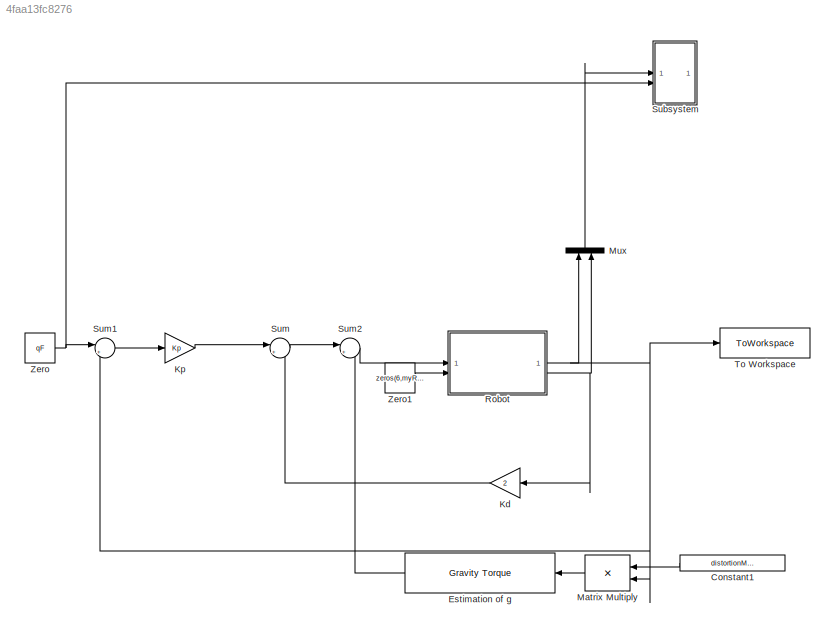
MODEL slx_4faa13fc8276
KIND model
CONFIG AbsTol = auto
CONFIG EnableMultiTasking = off
CONFIG FixedStep = sampleTime
CONFIG MaxStep = 0.01
CONFIG MinStep = auto
CONFIG RelTol = 1e-3
CONFIG SampleTimeConstraint = Unconstrained
CONFIG SolverName = FixedStepAuto
CONFIG StartTime = 0.0
CONFIG StopTime = 15
BLOCK [Constant] Constant1
  NameLocation = top
  Value = distortionMatrix
BLOCK [Reference] Estimation of g  REF=robotmaniplib/Gravity Torque
  NameLocation = top
  SourceBlock = robotmaniplib/Gravity Torque
  SourceType = Gravity Torque
BLOCK [Gain] Kd
  Gain = 2
  NameLocation = top
BLOCK [Gain] Kp
  Gain = Kp
  Multiplication = Matrix(K*u)
BLOCK [Product] Matrix Multiply
  Multiplication = Matrix(*)
  NameLocation = top
BLOCK [Mux] Mux
  DisplayOption = bar
  Inputs = 2
  NameLocation = right
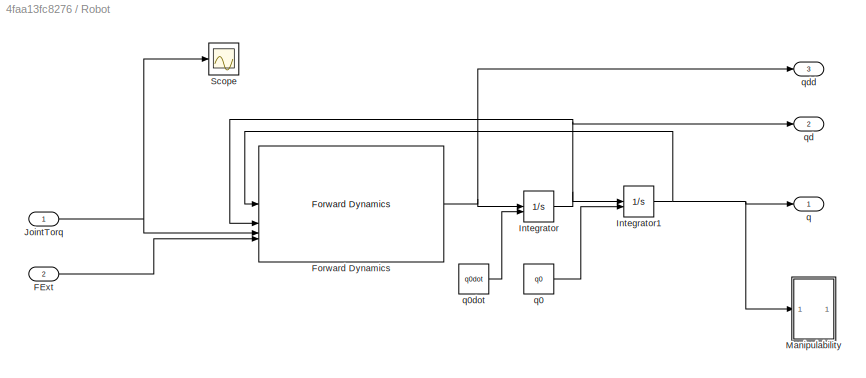
BLOCK [SubSystem] Robot
BLOCK [Inport] Robot/FExt
  Port = 2
BLOCK [Reference] Robot/Forward Dynamics  REF=robotmaniplib/Forward Dynamics
  SourceBlock = robotmaniplib/Forward Dynamics
  SourceType = Forward Dynamics
BLOCK [Integrator] Robot/Integrator
  InitialConditionSource = external
BLOCK [Integrator] Robot/Integrator1
  InitialConditionSource = external
BLOCK [Inport] Robot/JointTorq
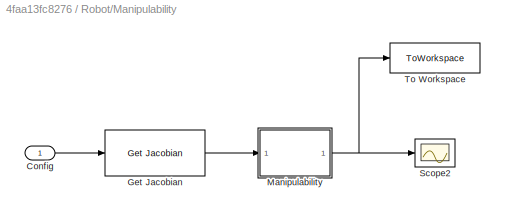
BLOCK [SubSystem] Robot/Manipulability
BLOCK [Inport] Robot/Manipulability/Config
BLOCK [Reference] Robot/Manipulability/Get Jacobian  REF=robotmaniplib/Get Jacobian
  SourceBlock = robotmaniplib/Get Jacobian
  SourceType = Get Jacobian
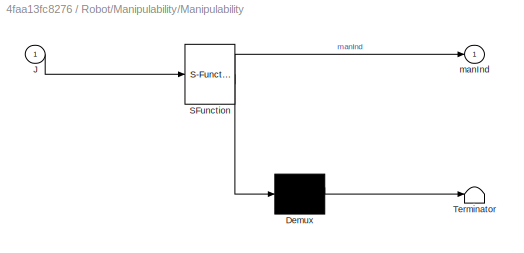
BLOCK [SubSystem] Robot/Manipulability/Manipulability
  ErrorFcn = Stateflow.Translate.translate
  PermitHierarchicalResolution = ExplicitOnly
  SFBlockType = MATLAB Function
  TreatAsAtomicUnit = on
BLOCK [Demux] Robot/Manipulability/Manipulability/ Demux 
  Outputs = 1
BLOCK [S-Function] Robot/Manipulability/Manipulability/ SFunction 
  EnableBusSupport = on
  FunctionName = sf_sfun
  PortCounts = [1 2]
  SFcnIsStateOwnerBlock = off
  SFunctionDeploymentMode = off
  Tag = Stateflow S-Function 1
BLOCK [Terminator] Robot/Manipulability/Manipulability/ Terminator 
BLOCK [Inport] Robot/Manipulability/Manipulability/J
BLOCK [Outport] Robot/Manipulability/Manipulability/manInd
BLOCK [Scope] Robot/Manipulability/Scope2
  Floating = off
  NumInputPorts = 1
  ScopeSpecificationString = Simulink.scopes.TimeScopeBlockCfg('CurrentConfiguration', extmgr.ConfigurationSet(extmgr.Configuration('Core','General UI',true),extmgr.Configuration('Core','Source UI',true),extmgr.Configuration('Sources','WiredSimulink',true,'DataLoggingVariableName','ScopeData8'),extmgr.Configuration('Visuals','Time Domain',true,'SerializedDisplays',{struct('MinYLimReal','-0.01246','MaxYLimReal','0.11213','YLab...<+1401ch>
BLOCK [ToWorkspace] Robot/Manipulability/To Workspace
  FixptAsFi = on
  MaxDataPoints = inf
  SampleTime = -1
  SaveFormat = Timeseries
  VariableName = manip
BLOCK [Scope] Robot/Scope
  Floating = off
  NumInputPorts = 1
  ScopeSpecificationString = Simulink.scopes.TimeScopeBlockCfg('CurrentConfiguration', extmgr.ConfigurationSet(extmgr.Configuration('Core','General UI',true),extmgr.Configuration('Core','Source UI',true),extmgr.Configuration('Sources','WiredSimulink',true,'DataLoggingVariableName','ScopeData2'),extmgr.Configuration('Visuals','Time Domain',true,'SerializedDisplays',{struct('MinYLimReal','-23.49116','MaxYLimReal','67.7226','YLa...<+1442ch>
BLOCK [Outport] Robot/q
BLOCK [Constant] Robot/q0
  Value = q0
BLOCK [Constant] Robot/q0dot
  Value = q0dot
BLOCK [Outport] Robot/qd
  Port = 2
BLOCK [Outport] Robot/qdd
  Port = 3
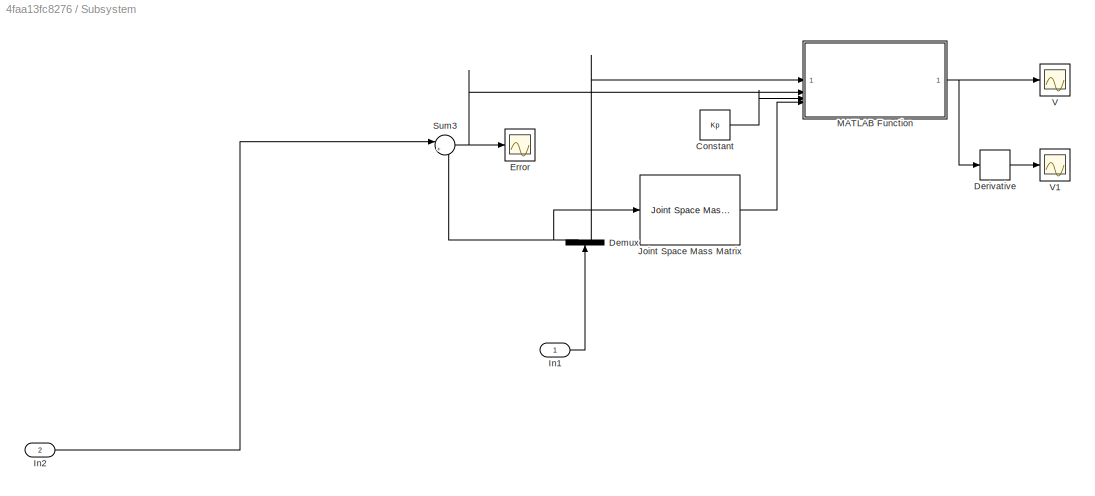
BLOCK [SubSystem] Subsystem
BLOCK [Constant] Subsystem/Constant
  Value = Kp
BLOCK [Demux] Subsystem/Demux
  NameLocation = right
  Outputs = 2
BLOCK [Derivative] Subsystem/Derivative
BLOCK [Scope] Subsystem/Error
  Floating = off
  NumInputPorts = 1
  ScopeSpecificationString = Simulink.scopes.TimeScopeBlockCfg('CurrentConfiguration', extmgr.ConfigurationSet(extmgr.Configuration('Core','General UI',true,'FigureColor',[1 1 1]),extmgr.Configuration('Core','Source UI',true),extmgr.Configuration('Sources','WiredSimulink',true),extmgr.Configuration('Visuals','Time Domain',true,'PlotType','Line','SerializedDisplays',{struct('MinYLimReal','-3.3137','MaxYLimReal','8.1863','YLabe...<+2343ch>
BLOCK [Inport] Subsystem/In1
BLOCK [Inport] Subsystem/In2
  Port = 2
BLOCK [Reference] Subsystem/Joint Space Mass Matrix  REF=robotmaniplib/Joint Space Mass Matrix
  SourceBlock = robotmaniplib/Joint Space Mass Matrix
  SourceType = Joint Space Mass Matrix
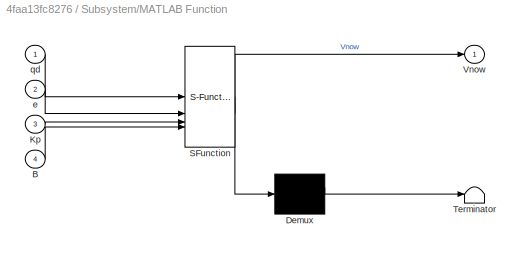
BLOCK [SubSystem] Subsystem/MATLAB Function
  ErrorFcn = Stateflow.Translate.translate
  PermitHierarchicalResolution = ExplicitOnly
  SFBlockType = MATLAB Function
  TreatAsAtomicUnit = on
BLOCK [Demux] Subsystem/MATLAB Function/ Demux 
  Outputs = 1
BLOCK [S-Function] Subsystem/MATLAB Function/ SFunction 
  EnableBusSupport = on
  FunctionName = sf_sfun
  PortCounts = [4 2]
  SFcnIsStateOwnerBlock = off
  SFunctionDeploymentMode = off
  Tag = Stateflow S-Function 2
BLOCK [Terminator] Subsystem/MATLAB Function/ Terminator 
BLOCK [Inport] Subsystem/MATLAB Function/B
  Port = 4
BLOCK [Inport] Subsystem/MATLAB Function/Kp
  Port = 3
BLOCK [Outport] Subsystem/MATLAB Function/Vnow
BLOCK [Inport] Subsystem/MATLAB Function/e
  Port = 2
BLOCK [Inport] Subsystem/MATLAB Function/qd
BLOCK [Sum] Subsystem/Sum3
  Inputs = |+-
BLOCK [Scope] Subsystem/V
  Floating = off
  NumInputPorts = 1
  ScopeSpecificationString = Simulink.scopes.TimeScopeBlockCfg('CurrentConfiguration', extmgr.ConfigurationSet(extmgr.Configuration('Core','General UI',true),extmgr.Configuration('Core','Source UI',true),extmgr.Configuration('Sources','WiredSimulink',true,'DataLoggingVariableName','ScopeData1'),extmgr.Configuration('Visuals','Time Domain',true,'SerializedDisplays',{struct('MinYLimReal','-1.92523','MaxYLimReal','8.36767','YLab...<+1551ch>
BLOCK [Scope] Subsystem/V1
  Floating = off
  NumInputPorts = 1
  ScopeSpecificationString = Simulink.scopes.TimeScopeBlockCfg('CurrentConfiguration', extmgr.ConfigurationSet(extmgr.Configuration('Core','General UI',true),extmgr.Configuration('Core','Source UI',true),extmgr.Configuration('Sources','WiredSimulink',true,'DataLoggingVariableName','ScopeData1'),extmgr.Configuration('Visuals','Time Domain',true,'SerializedDisplays',{struct('MinYLimReal','-1.92523','MaxYLimReal','8.36767','YLab...<+1546ch>
BLOCK [Sum] Sum
  Inputs = |+-
BLOCK [Sum] Sum1
  Inputs = |+-
BLOCK [Sum] Sum2
  Inputs = |++
BLOCK [ToWorkspace] To Workspace
  MaxDataPoints = inf
  SampleTime = -1
  VariableName = q
BLOCK [Constant] Zero
  OutDataTypeStr = Inherit: Inherit via back propagation
  Value = qF
  VectorParams1D = off
BLOCK [Constant] Zero1
  OutDataTypeStr = Inherit: Inherit via back propagation
  Value = zeros(6,myRob.NumBodies)
  VectorParams1D = off
LINE Constant1:1 -> Matrix Multiply:1
LINE Estimation of g:1 -> Sum2:2
LINE Kd:1 -> Sum:2
LINE Kp:1 -> Sum:1
LINE Matrix Multiply:1 -> Estimation of g:1
LINE Mux:1 -> Subsystem:1
LINE Robot/FExt:1 -> Robot/Forward Dynamics:4
NET Robot/Forward Dynamics:1 -> Robot/Integrator:1, Robot/qdd:1
NET Robot/Integrator1:1 -> Robot/Forward Dynamics:1, Robot/Manipulability:1, Robot/q:1
NET Robot/Integrator:1 -> Robot/Forward Dynamics:2, Robot/Integrator1:1, Robot/qd:1
NET Robot/JointTorq:1 -> Robot/Forward Dynamics:3, Robot/Scope:1
LINE Robot/Manipulability/Config:1 -> Robot/Manipulability/Get Jacobian:1
LINE Robot/Manipulability/Get Jacobian:1 -> Robot/Manipulability/Manipulability:1
NET Robot/Manipulability/Manipulability:1 -> Robot/Manipulability/Scope2:1, Robot/Manipulability/To Workspace:1
LINE Robot/q0:1 -> Robot/Integrator1:2
LINE Robot/q0dot:1 -> Robot/Integrator:2
NET Robot:1 -> Matrix Multiply:2, Mux:1, Sum1:2, To Workspace:1
NET Robot:2 -> Kd:1, Mux:2
LINE Subsystem/Constant:1 -> Subsystem/MATLAB Function:3
NET Subsystem/Demux:1 -> Subsystem/Joint Space Mass Matrix:1, Subsystem/Sum3:2
LINE Subsystem/Demux:2 -> Subsystem/MATLAB Function:1
LINE Subsystem/Derivative:1 -> Subsystem/V1:1
LINE Subsystem/In1:1 -> Subsystem/Demux:1
LINE Subsystem/In2:1 -> Subsystem/Sum3:1
LINE Subsystem/Joint Space Mass Matrix:1 -> Subsystem/MATLAB Function:4
NET Subsystem/MATLAB Function:1 -> Subsystem/Derivative:1, Subsystem/V:1
NET Subsystem/Sum3:1 -> Subsystem/Error:1, Subsystem/MATLAB Function:2
LINE Sum1:1 -> Kp:1
LINE Sum2:1 -> Robot:1
LINE Sum:1 -> Sum2:1
LINE Zero1:1 -> Robot:2
NET Zero:1 -> Subsystem:2, Sum1:1
note: NET lines group one-source signal fan-out (src -> all destinations, sorted); 1:1 wires keep LINE
CHART Robot/Manipulability/Manipulability states=1 transitions=1
  STATE_LABEL 'eML_blk_kernel()'
  STATE_LABEL "SCRIPT:\nfunction manInd = fcn(J)\n    manInd = sqrt(det(J * J'));\n\n"
CHART Subsystem/MATLAB Function states=1 transitions=1
  STATE_LABEL 'eML_blk_kernel()'
  STATE_LABEL 'SCRIPT:\nfunction Vnow = lyapunovCandidateWrap(qd,e,Kp,B)\nVnow = lyapunovCandidate(qd,e,Kp,B);\n\n\n'
CHART  states=0 transitions=0
CHART  states=0 transitions=0
